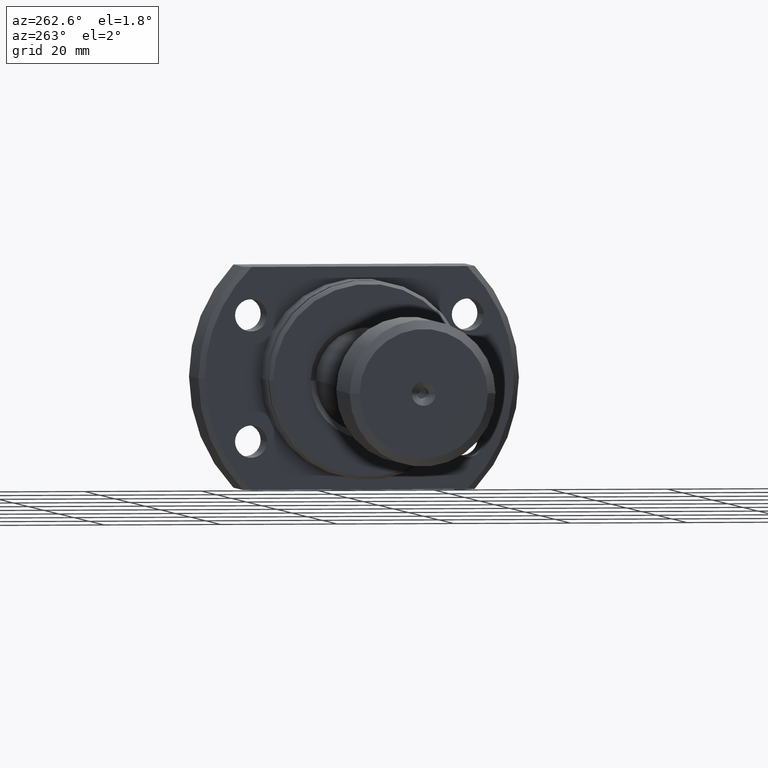
[diagram: clean part render]
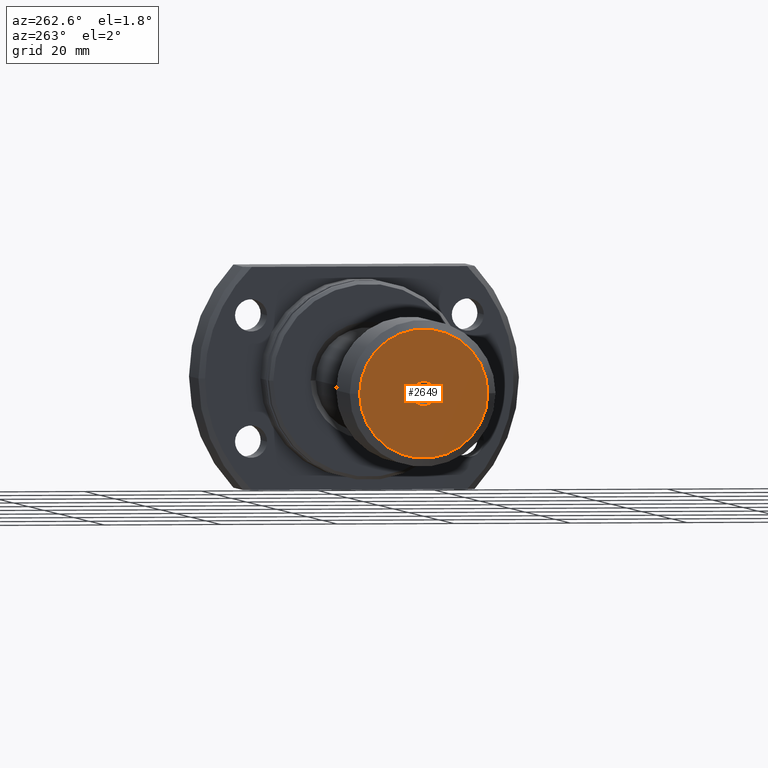
[diagram: same view with one face highlighted and labeled with its STEP entity id]
A machine part, auxiliary view. The second image highlights one B-rep face of the part: STEP entity #2649.
In plain terms, the highlighted planar face has unit normal (-1, -0, 0).
Its self-contained STEP definition (entity closure, byte-faithful):
#107 = DIRECTION ( 'NONE',  ( 1.069542322069066263E-17, -1.000000000000000000, 0.000000000000000000 ) ) ;
#138 = PLANE ( 'NONE',  #265 ) ;
#154 = EDGE_CURVE ( 'NONE', #1982, #3208, #484, .T. ) ;
#265 = AXIS2_PLACEMENT_3D ( 'NONE', #2117, #1143, #885 ) ;
#311 = CARTESIAN_POINT ( 'NONE',  ( 6.147309118172456842E-16, 0.000000000000000000, 0.000000000000000000 ) ) ;
#431 = DIRECTION ( 'NONE',  ( -1.000000000000000000, -1.069542322069065801E-17, -0.000000000000000000 ) ) ;
#484 = CIRCLE ( 'NONE', #791, 11.00000000000000178 ) ;
#620 = EDGE_CURVE ( 'NONE', #1439, #1854, #2724, .T. ) ;
#639 = DIRECTION ( 'NONE',  ( 1.000000000000000000, 1.069542322069065801E-17, 0.000000000000000000 ) ) ;
#658 = FACE_OUTER_BOUND ( 'NONE', #1719, .T. ) ;
#791 = AXIS2_PLACEMENT_3D ( 'NONE', #3123, #431, #1148 ) ;
#864 = CARTESIAN_POINT ( 'NONE',  ( 1.347111479062088602E-15, -11.00000000000000178, 1.438959988998140160E-15 ) ) ;
#885 = DIRECTION ( 'NONE',  ( 1.069542322069065801E-17, -1.000000000000000000, 0.000000000000000000 ) ) ;
#886 = CIRCLE ( 'NONE', #1041, 11.00000000000000178 ) ;
#903 = AXIS2_PLACEMENT_3D ( 'NONE', #2365, #639, #107 ) ;
#1007 = ORIENTED_EDGE ( 'NONE', *, *, #154, .T. ) ;
#1035 = CARTESIAN_POINT ( 'NONE',  ( 6.147309118172456842E-16, 2.541142108230766946E-16, -2.075000000000007283 ) ) ;
#1041 = AXIS2_PLACEMENT_3D ( 'NONE', #3199, #1744, #1712 ) ;
#1143 = DIRECTION ( 'NONE',  ( -1.000000000000000000, -1.069542322069065801E-17, 0.000000000000000000 ) ) ;
#1148 = DIRECTION ( 'NONE',  ( 1.069542322069065647E-17, -1.000000000000000000, 0.000000000000000000 ) ) ;
#1189 = ORIENTED_EDGE ( 'NONE', *, *, #1383, .T. ) ;
#1329 = CIRCLE ( 'NONE', #2991, 2.075000000000007283 ) ;
#1335 = DIRECTION ( 'NONE',  ( 1.069542322069066263E-17, -1.000000000000000000, 0.000000000000000000 ) ) ;
#1351 = ORIENTED_EDGE ( 'NONE', *, *, #620, .T. ) ;
#1383 = EDGE_CURVE ( 'NONE', #1854, #1439, #1329, .T. ) ;
#1439 = VERTEX_POINT ( 'NONE', #1035 ) ;
#1620 = FACE_BOUND ( 'NONE', #2353, .T. ) ;
#1712 = DIRECTION ( 'NONE',  ( 1.069542322069065647E-17, -1.000000000000000000, 0.000000000000000000 ) ) ;
#1719 = EDGE_LOOP ( 'NONE', ( #2248, #1007 ) ) ;
#1744 = DIRECTION ( 'NONE',  ( -1.000000000000000000, -1.069542322069065801E-17, -0.000000000000000000 ) ) ;
#1854 = VERTEX_POINT ( 'NONE', #2543 ) ;
#1982 = VERTEX_POINT ( 'NONE', #864 ) ;
#2026 = DIRECTION ( 'NONE',  ( 1.000000000000000000, 1.069542322069065801E-17, 0.000000000000000000 ) ) ;
#2117 = CARTESIAN_POINT ( 'NONE',  ( 6.147309118172456842E-16, 6.574807268726511244E-33, 0.000000000000000000 ) ) ;
#2248 = ORIENTED_EDGE ( 'NONE', *, *, #2895, .T. ) ;
#2326 = CARTESIAN_POINT ( 'NONE',  ( 1.111812168206894135E-15, 11.00000000000000178, 0.000000000000000000 ) ) ;
#2353 = EDGE_LOOP ( 'NONE', ( #1189, #1351 ) ) ;
#2365 = CARTESIAN_POINT ( 'NONE',  ( 6.147309118172456842E-16, 0.000000000000000000, 0.000000000000000000 ) ) ;
#2543 = CARTESIAN_POINT ( 'NONE',  ( 6.147309118172456842E-16, 0.000000000000000000, 2.075000000000007283 ) ) ;
#2649 = ADVANCED_FACE ( 'NONE', ( #1620, #658 ), #138, .T. ) ;
#2724 = CIRCLE ( 'NONE', #903, 2.075000000000007283 ) ;
#2895 = EDGE_CURVE ( 'NONE', #3208, #1982, #886, .T. ) ;
#2991 = AXIS2_PLACEMENT_3D ( 'NONE', #311, #2026, #1335 ) ;
#3123 = CARTESIAN_POINT ( 'NONE',  ( 1.229461823634491368E-15, 1.314961453745302249E-32, 0.000000000000000000 ) ) ;
#3199 = CARTESIAN_POINT ( 'NONE',  ( 1.229461823634491368E-15, 1.314961453745302249E-32, 0.000000000000000000 ) ) ;
#3208 = VERTEX_POINT ( 'NONE', #2326 ) ;